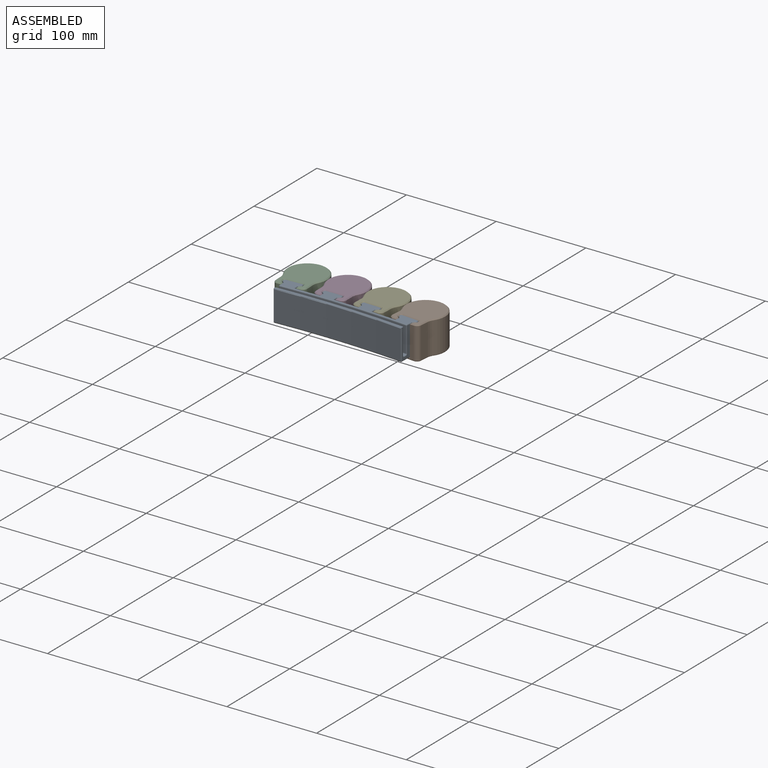
[diagram: assembled view]
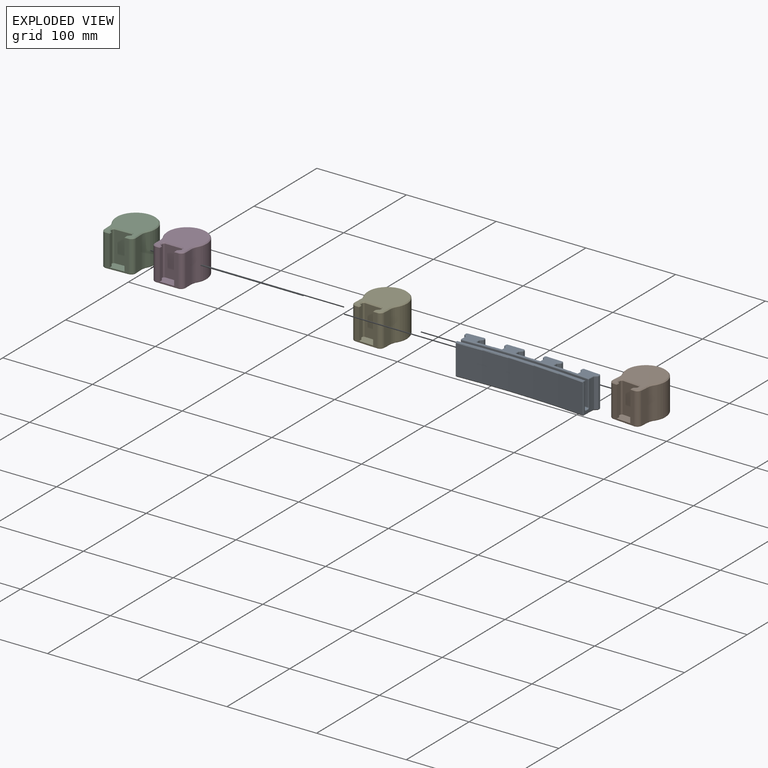
[diagram: exploded view]
GUIDED TOUR — MATED ASSEMBLY (Onshape document a378aaa92d6a73c06795d829, AutoMate assembly a378aaa92d6a73c06795d829_809e8ccdd2a63b1c819c4814_ec6c85f14693e9807fbb0a34_default)

This assembly has 5 components, labeled P0..P4 below (a component is one placed occurrence of a part; the same part can appear more than once), held together by 4 mates. A mate is a constraint between two components; its type names the relative motion it leaves free:
  FASTENED — locks the two components together rigidly (no relative motion),
  SLIDER — leaves translation along the listed axis free.
Axis/direction vectors are unit vectors and 'through' points are millimeter coordinates, both in the assembly's world frame.

MATES
  1. SLIDER "Slider 1": P2 <-> P0, axis (0.000, 0.000, -1.000) through (128.84, -8.79, -37.56) mm
  2. FASTENED "Fastened 2": P0 <-> P3, direction (0.000, 0.000, -1.000) through (172.41, -7.86, -37.56) mm
  3. FASTENED "Fastened 3": P4 <-> P0, direction (0.000, 0.000, -1.000) through (215.93, -8.78, -37.56) mm
  4. FASTENED "Fastened 1": P1 <-> P0, direction (0.000, 0.000, -1.000) through (259.42, -11.55, -37.56) mm

ASSEMBLY ORDER
  1. P4 — the base component [order verified]
  2. P0 [order verified]
  3. P3 [order verified]
  4. P2 [order verified]
  5. P1 [order verified]
Order-tag legend:
  [order verified] — this step's position reverses a verified removal order: the component was checked to insert without passing through the ones already placed.

Of the 5 components, 1 carries the full construction recipe — the FeatureScript program that regenerates the part's solid from scratch; the rest are supplied as boundary geometry only.
Each toured component is shown spotlighted twice — in the assembled view, then in the exploded view, where a leader line traces a displaced component back to its assembled socket (saturated green if recipe-attached, orange if geometry-only; every other component desaturated gray) — followed by its recipe or geometry summary and the mates that hold it.
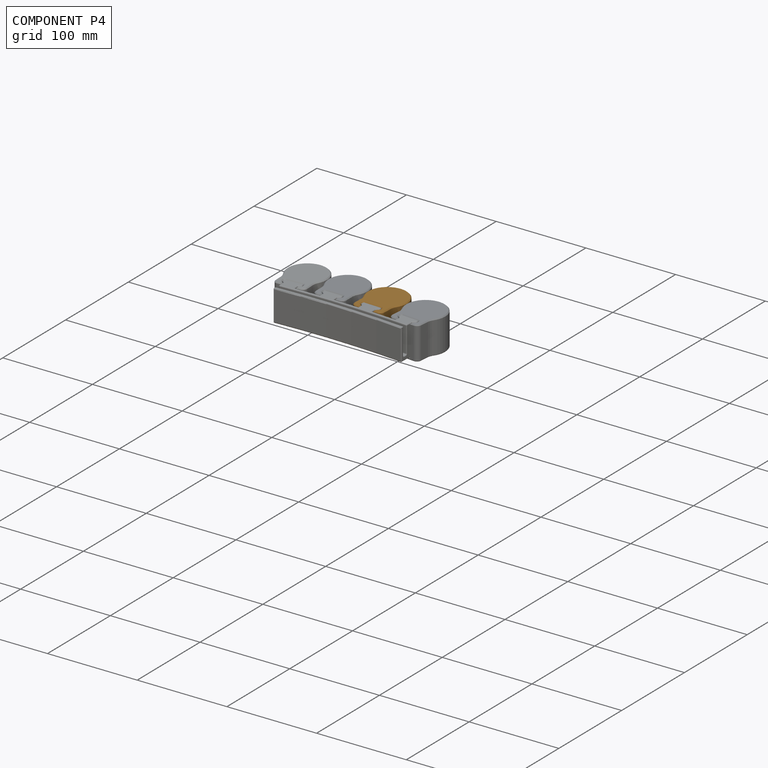
[diagram: component P4 — assembled]
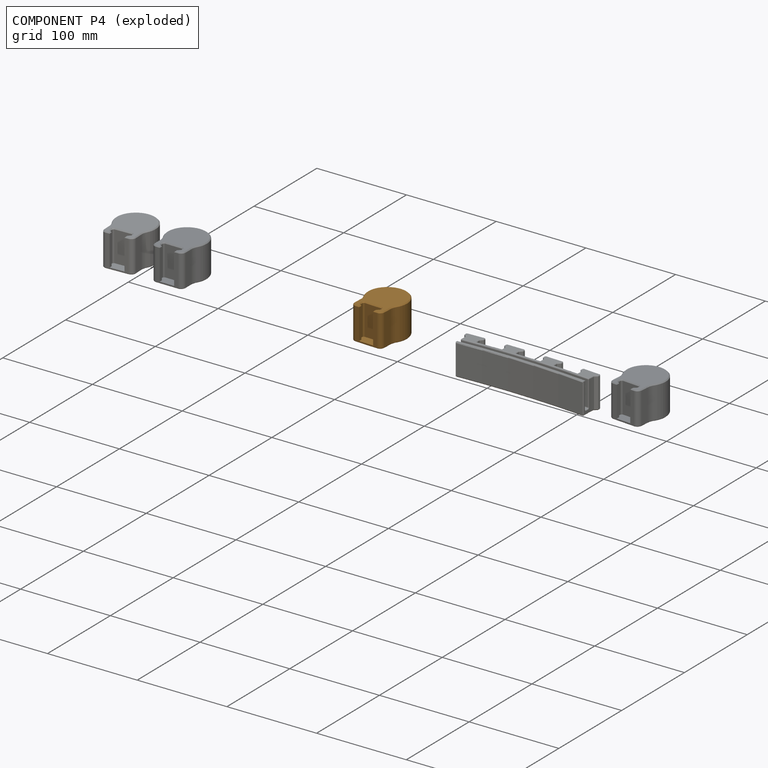
[diagram: component P4 — exploded]
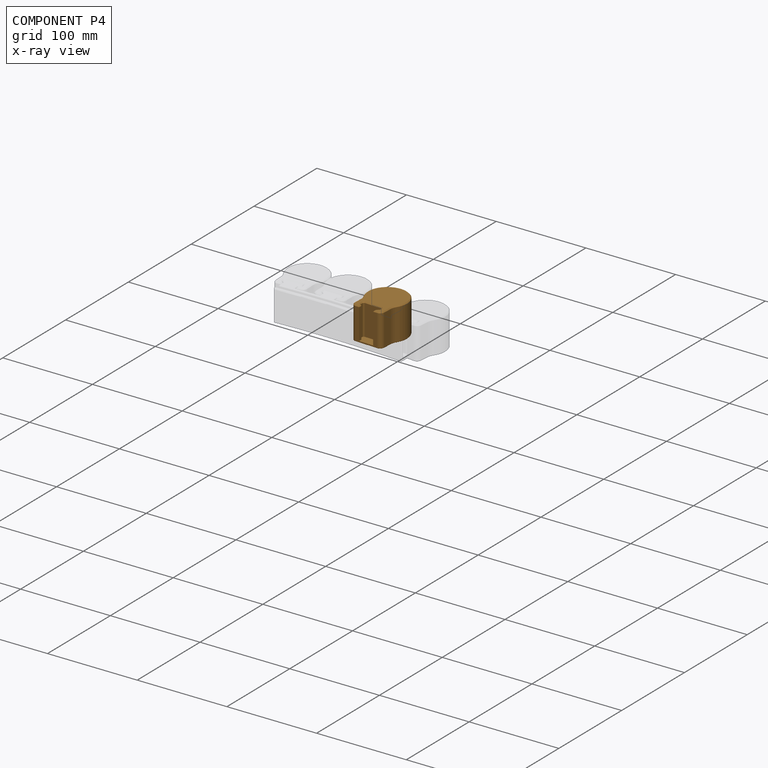
[diagram: component P4 — x-ray view]
COMPONENT P4 — geometry summary (no construction recipe available for this part):
  bounding box: 56.2 x 47.8 x 37.1 mm
  B-rep topology: 1 solid, 83 faces, 414 edges
  volume: 22186 mm^3 (22% of its bounding box)
  symmetry: mirror-symmetric across its x mid-plane
Held by: FASTENED mate "Fastened 3" to P0.
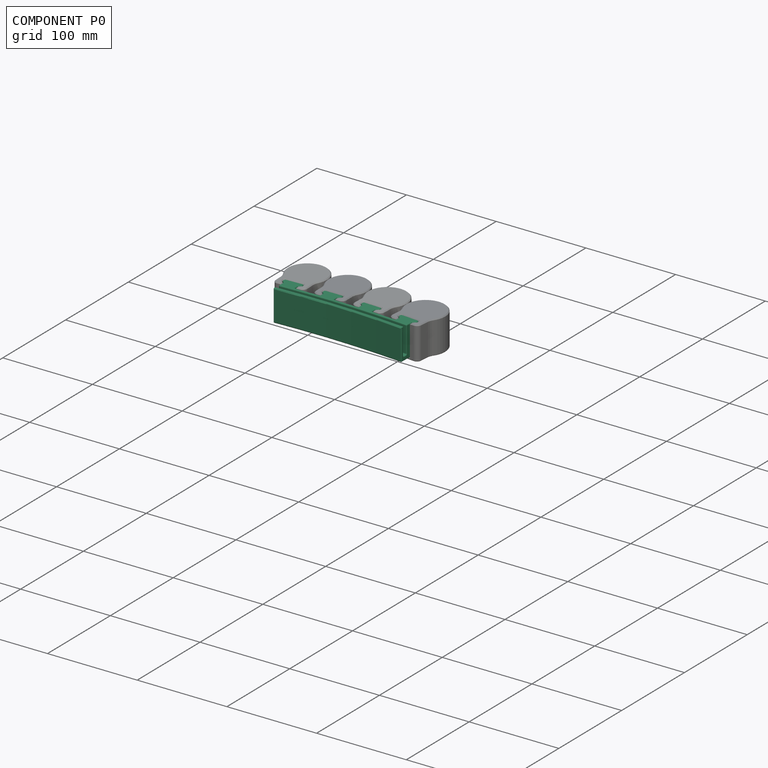
[diagram: component P0 — assembled]
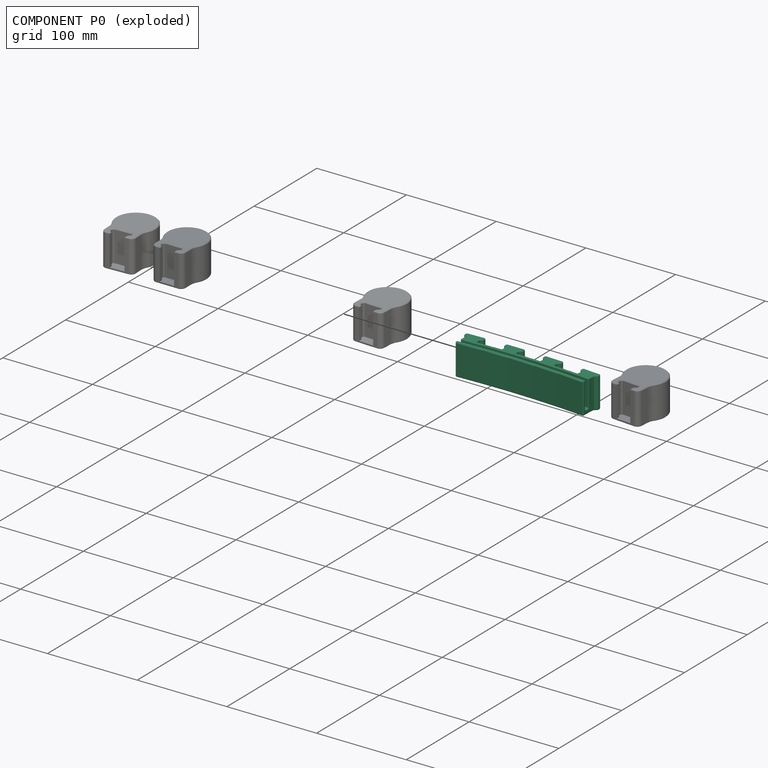
[diagram: component P0 — exploded]
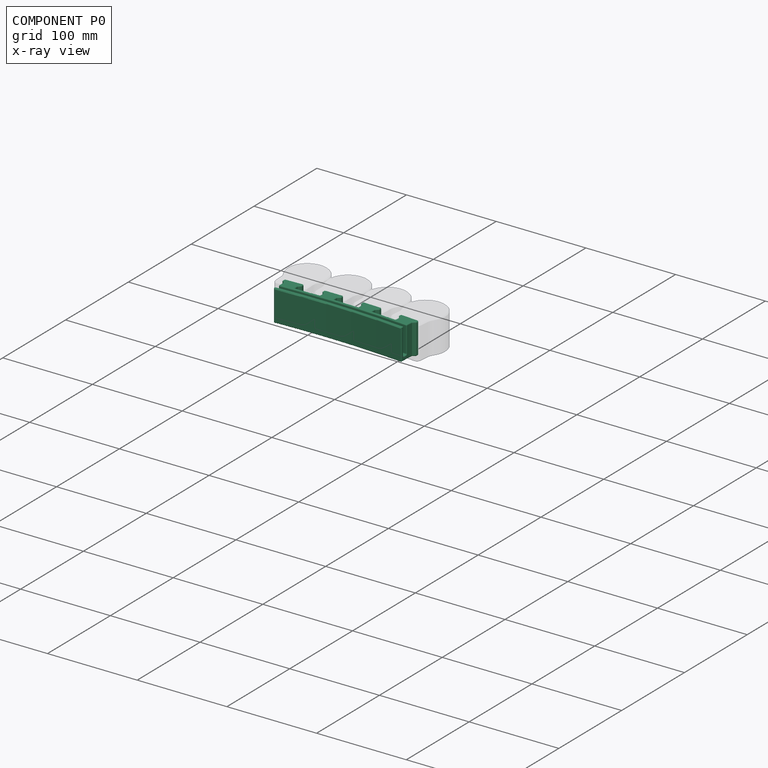
[diagram: component P0 — x-ray view]
COMPONENT P0 — recipe-attached (CADFS 00832542, mesh-verified: the recipe's output STEP matches this component's geometry to below the mesh-comparison resolution (tessellation chordal tolerance ~0.237 mm)).
Held by: SLIDER mate "Slider 1" to P2; FASTENED mate "Fastened 2" to P3; FASTENED mate "Fastened 3" to P4; FASTENED mate "Fastened 1" to P1.
Construction recipe (FeatureScript — the CAD program that rebuilds this solid; sketch coordinates are in the units given by the * unit suffixes, e.g. mm):

FeatureScript 1511;
import(path : "onshape/std/geometry.fs", version : "1511.0");
import(path : "onshape/std/common.fs", version : "1511.0");
const mm = millimeter;
const VERTEX = EntityType.VERTEX;
const EDGE = EntityType.EDGE;
const FACE = EntityType.FACE;
const BODY = EntityType.BODY;
function v(x, y){return vector(x, y);}
function OD(order){return orderDisambiguation(order);}
function OSD(set){return originalSetDisambiguation(set);}
function TD(topology){return topologyDisambiguation(topology);}
function TDD(query){return trueDependencyDisambiguation(query);}
function sQuery(a, b, c) {return sketchEntityQuery(a, b, c);}

annotation { "Feature Type Name" : "Feature", "Feature Type Description" : "" }
export const myFeature = defineFeature(function(context is Context, id is Id, definition is map)
    precondition{}
    {
        {
            var Q0;
            Q0=qCreatedBy(makeId("Top.planeOp"),FACE);
            var sketch = newSketch(context, id + "F0", { "sketchPlane" : qUnion([Q0])});
            skArc(sketch, "E0", {"start": v(72.5, 0) * mm, "mid": v(0, 2.6) * mm, "end": v(-72.5, 0) * mm});
            skPoint(sketch, "E1", {"position": v(0, 2.6) * mm});
            skArc(sketch, "E2.0", {"start": v(72.5, 3) * mm, "mid": v(0, 5.6) * mm, "end": v(-72.5, 3) * mm});
            skArc(sketch, "E3.0", {"start": v(72.5, -5.01) * mm, "mid": v(0, -2.4) * mm, "end": v(-72.5, -5.01) * mm});
            skArc(sketch, "E4.0", {"start": v(72.5, -8.02) * mm, "mid": v(0, -5.4) * mm, "end": v(-72.5, -8.02) * mm});
            skLineSegment(sketch, "E5", {"start": v(-72.5, -5.01) * mm, "end": v(-72.5, -8.02) * mm});
            skLineSegment(sketch, "E6", {"start": v(-72.5, 3) * mm, "end": v(-72.5, 0) * mm});
            skLineSegment(sketch, "E7", {"start": v(72.5, 3) * mm, "end": v(72.5, 0) * mm});
            skLineSegment(sketch, "E8", {"start": v(72.5, -5.01) * mm, "end": v(72.5, -8.02) * mm});
            skLineSegment(sketch, "E9", {"start": v(-72.5, 3) * mm, "end": v(-72.5, -8.02) * mm});
            skLineSegment(sketch, "E10", {"start": v(72.5, 3) * mm, "end": v(72.5, -8.02) * mm});
            skPoint(sketch, "E11", {"position": v(-21.6, 5.36) * mm});
            skPoint(sketch, "E12", {"position": v(21.6, 5.36) * mm});
            skSolve(sketch);
        }
        {
            var Q0;
            {var subQ0=sQuery(id+"F0.wireOp",EDGE,"E0");Q0=makeQuery(id+"F0.imprint","IMPRINT",FACE,{"disambiguationData":[TD([[makeQuery(id+"F0.imprint","IMPRINT",EDGE,{"derivedFrom":subQ0}),1.0]])]});}
            var Q1;
            {var subQ0=sQuery(id+"F0.wireOp",EDGE,"E0");Q1=makeQuery(id+"F0.imprint","IMPRINT",FACE,{"disambiguationData":[TD([[makeQuery(id+"F0.imprint","IMPRINT",EDGE,{"derivedFrom":subQ0}),-1.0]])]});}
            var Q2;
            {var subQ0=sQuery(id+"F0.wireOp",EDGE,"E3.0");Q2=makeQuery(id+"F0.imprint","IMPRINT",FACE,{"disambiguationData":[TD([[makeQuery(id+"F0.imprint","IMPRINT",EDGE,{"derivedFrom":subQ0}),1.0]])]});}
            extrude(context, id + "F1", {"entities" : qUnion([Q0, Q1, Q2]), "depth" : 5 * mm, "offsetDistance" : 25 * mm});
        }
        {
            var Q0;
            {var subQ0=sQuery(id+"F0.wireOp",EDGE,"E0");Q0=makeQuery(id+"F0.imprint","IMPRINT",FACE,{"disambiguationData":[TD([[makeQuery(id+"F0.imprint","IMPRINT",EDGE,{"derivedFrom":subQ0}),-1.0]])]});}
            extrude(context, id + "F2", {"entities" : qUnion([Q0]), "operationType" : NewBodyOperationType.ADD, "depth" : 35 * mm, "offsetDistance" : 25 * mm});
        }
        {
            var Q0;
            {var subQ0=sQuery(id+"F0.wireOp",EDGE,"E3.0");Q0=makeQuery(id+"F0.imprint","IMPRINT",FACE,{"disambiguationData":[TD([[makeQuery(id+"F0.imprint","IMPRINT",EDGE,{"derivedFrom":subQ0}),1.0]])]});}
            var Q1;
            Q1=makeQuery(id+"F2.opExtrude","CAP_FACE",FACE,{"disambiguationData":[OSD([sQuery(id+"F0.wireOp",EDGE,"E0"),sQuery(id+"F0.wireOp",EDGE,"E2.0"),sQuery(id+"F0.wireOp",EDGE,"E9"),sQuery(id+"F0.wireOp",EDGE,"E10")])],"isStart":false});
            extrude(context, id + "F3", {"entities" : qUnion([Q0]), "operationType" : NewBodyOperationType.ADD, "endBound" : BoundingType.UP_TO_SURFACE, "depth" : 35 * mm, "endBoundEntityFace" : qUnion([Q1]), "offsetDistance" : 25 * mm});
        }
        {
            var Q0;
            {var subQ0=sQuery(id+"F0.wireOp",EDGE,"E9");Q0=makeQuery(id+"F3.boolean.opBoolean","MERGE",FACE,{"derivedFrom":[makeQuery(id+"F2.boolean.opBoolean","MERGE",FACE,{"derivedFrom":[makeQuery(id+"F1.opExtrude","SWEPT_FACE",FACE,{"disambiguationData":[OSD([subQ0])]}),makeQuery(id+"F2.opExtrude","SWEPT_FACE",FACE,{"disambiguationData":[OSD([subQ0])]})]}),makeQuery(id+"F3.opExtrude","SWEPT_FACE",FACE,{"disambiguationData":[OSD([subQ0])]})]});}
            var sketch = newSketch(context, id + "F4", { "sketchPlane" : qUnion([Q0])});
            skArc(sketch, "E13", {"start": v(5.01, 35) * mm, "mid": v(3.72, 32.62) * mm, "end": v(5.01, 30.24) * mm});
            skSolve(sketch);
        }
        {
            var Q0;
            {var subQ0=sQuery(id+"F4.wireOp",EDGE,"E13");Q0=makeQuery(id+"F4.imprint","IMPRINT",FACE,{"disambiguationData":[TD([[makeQuery(id+"F4.imprint","IMPRINT",EDGE,{"derivedFrom":subQ0}),1.0]])]});}
            var Q1;
            Q1=makeQuery(id+"F3.opExtrude","CAP_EDGE",EDGE,{"disambiguationData":[OSD([sQuery(id+"F0.wireOp",EDGE,"E3.0")])],"isStart":false});
            sweep(context, id + "F5", {"operationType" : NewBodyOperationType.ADD, "profiles" : qUnion([Q0]), "path" : qUnion([Q1])});
        }
        {
            var Q0;
            Q0=qCreatedBy(makeId("Top.planeOp"),FACE);
            var sketch = newSketch(context, id + "F6", { "sketchPlane" : qUnion([Q0])});
            skLineSegment(sketch, "E14", {"start": v(57.11, 3.99) * mm, "end": v(72.5, 3) * mm});
            skLineSegment(sketch, "E15", {"start": v(57.11, 3.99) * mm, "end": v(57.43, 8.98) * mm});
            skLineSegment(sketch, "E16", {"start": v(72.5, 3) * mm, "end": v(72.82, 8) * mm});
            skLineSegment(sketch, "E17", {"start": v(72.82, 8) * mm, "end": v(75.82, 10.64) * mm});
            skLineSegment(sketch, "E18", {"start": v(75.02, 14.36) * mm, "end": v(56.06, 15.57) * mm});
            skLineSegment(sketch, "E19", {"start": v(54.79, 11.98) * mm, "end": v(57.43, 8.98) * mm});
            skLineSegment(sketch, "E20", {"start": v(54.79, 11.98) * mm, "end": v(54.95, 14.6) * mm});
            skLineSegment(sketch, "E21", {"start": v(54.95, 14.6) * mm, "end": v(56.06, 15.57) * mm});
            skLineSegment(sketch, "E22", {"start": v(75.02, 14.36) * mm, "end": v(76, 13.25) * mm});
            skLineSegment(sketch, "E23", {"start": v(76, 13.25) * mm, "end": v(75.82, 10.64) * mm});
            skPoint(sketch, "E24", {"position": v(65.54, 14.96) * mm});
            skPoint(sketch, "E25", {"position": v(64.8, 3.5) * mm});
            skLineSegment(sketch, "E26", {"start": v(66.13, 24.3) * mm, "end": v(62.81, -27.83) * mm, "construction": true});
            skLineSegment(sketch, "E27", {"start": v(53.84, 9.2) * mm, "end": v(75.99, 7.8) * mm, "construction": true});
            skLineSegment(sketch, "E28", {"start": v(54.06, 12.03) * mm, "end": v(76.55, 10.6) * mm, "construction": true});
            skLineSegment(sketch, "E29", {"start": v(57.43, 14.44) * mm, "end": v(80.73, 12.95) * mm, "construction": true});
            skPoint(sketch, "E30", {"position": v(65.3, 11.31) * mm});
            skSolve(sketch);
        }
        {
            var Q0;
            Q0=qCreatedBy(makeId("Top.planeOp"),FACE);
            var sketch = newSketch(context, id + "F7", { "sketchPlane" : qUnion([Q0])});
            skLineSegment(sketch, "E31", {"start": v(-72.5, 3) * mm, "end": v(-57.11, 3.99) * mm});
            skLineSegment(sketch, "E32", {"start": v(-72.5, 3) * mm, "end": v(-72.82, 8) * mm});
            skLineSegment(sketch, "E33", {"start": v(-57.11, 3.99) * mm, "end": v(-57.43, 8.98) * mm});
            skLineSegment(sketch, "E34", {"start": v(-57.43, 8.98) * mm, "end": v(-54.79, 11.98) * mm});
            skLineSegment(sketch, "E35", {"start": v(-56.06, 15.57) * mm, "end": v(-75.02, 14.36) * mm});
            skLineSegment(sketch, "E36", {"start": v(-75.82, 10.64) * mm, "end": v(-72.82, 8) * mm});
            skLineSegment(sketch, "E37", {"start": v(-75.82, 10.64) * mm, "end": v(-76, 13.25) * mm});
            skLineSegment(sketch, "E38", {"start": v(-76, 13.25) * mm, "end": v(-75.02, 14.36) * mm});
            skLineSegment(sketch, "E39", {"start": v(-56.06, 15.57) * mm, "end": v(-54.95, 14.6) * mm});
            skLineSegment(sketch, "E40", {"start": v(-54.95, 14.6) * mm, "end": v(-54.79, 11.98) * mm});
            skPoint(sketch, "E41", {"position": v(-65.54, 14.96) * mm});
            skPoint(sketch, "E42", {"position": v(-64.8, 3.5) * mm});
            skLineSegment(sketch, "E43", {"start": v(-66.36, 27.87) * mm, "end": v(-63.01, -24.64) * mm, "construction": true});
            skLineSegment(sketch, "E44", {"start": v(-77.11, 7.72) * mm, "end": v(-54.85, 9.14) * mm, "construction": true});
            skLineSegment(sketch, "E45", {"start": v(-77.54, 10.53) * mm, "end": v(-55.06, 11.97) * mm, "construction": true});
            skLineSegment(sketch, "E46", {"start": v(-74.75, 13.33) * mm, "end": v(-51.32, 14.83) * mm, "construction": true});
            skPoint(sketch, "E47", {"position": v(-65.3, 11.31) * mm});
            skSolve(sketch);
        }
        {
            var Q0;
            Q0=qCreatedBy(makeId("Top.planeOp"),FACE);
            var sketch = newSketch(context, id + "F8", { "sketchPlane" : qUnion([Q0])});
            skLineSegment(sketch, "E48", {"start": v(-29.3, 5.17) * mm, "end": v(-13.9, 5.5) * mm});
            skLineSegment(sketch, "E49", {"start": v(-29.3, 5.17) * mm, "end": v(-29.41, 10.17) * mm});
            skLineSegment(sketch, "E50", {"start": v(-13.9, 5.5) * mm, "end": v(-14, 10.5) * mm});
            skLineSegment(sketch, "E51", {"start": v(-14, 10.5) * mm, "end": v(-11.23, 13.39) * mm});
            skLineSegment(sketch, "E52", {"start": v(-12.35, 17.02) * mm, "end": v(-31.34, 16.62) * mm});
            skLineSegment(sketch, "E53", {"start": v(-32.3, 12.94) * mm, "end": v(-29.41, 10.17) * mm});
            skLineSegment(sketch, "E54", {"start": v(-32.3, 12.94) * mm, "end": v(-32.36, 15.55) * mm});
            skLineSegment(sketch, "E55", {"start": v(-32.36, 15.55) * mm, "end": v(-31.34, 16.62) * mm});
            skLineSegment(sketch, "E56", {"start": v(-12.35, 17.02) * mm, "end": v(-11.28, 16) * mm});
            skLineSegment(sketch, "E57", {"start": v(-11.28, 16) * mm, "end": v(-11.23, 13.39) * mm});
            skPoint(sketch, "E58", {"position": v(-21.84, 16.82) * mm});
            skPoint(sketch, "E59", {"position": v(-21.6, 5.33) * mm});
            skLineSegment(sketch, "E60", {"start": v(-22.4, 42.7) * mm, "end": v(-21.1, -18.04) * mm, "construction": true});
            skLineSegment(sketch, "E61", {"start": v(-33.71, 10.08) * mm, "end": v(-11.41, 10.55) * mm, "construction": true});
            skLineSegment(sketch, "E62", {"start": v(-34.02, 12.9) * mm, "end": v(-11.5, 13.38) * mm, "construction": true});
            skLineSegment(sketch, "E63", {"start": v(-31.12, 15.58) * mm, "end": v(-7.65, 16.08) * mm, "construction": true});
            skPoint(sketch, "E64", {"position": v(-21.77, 13.16) * mm});
            skSolve(sketch);
        }
        {
            var Q0;
            Q0=qCreatedBy(makeId("Top.planeOp"),FACE);
            var sketch = newSketch(context, id + "F9", { "sketchPlane" : qUnion([Q0])});
            skLineSegment(sketch, "E65", {"start": v(13.9, 5.5) * mm, "end": v(29.3, 5.17) * mm});
            skLineSegment(sketch, "E66", {"start": v(13.9, 5.5) * mm, "end": v(14, 10.5) * mm});
            skLineSegment(sketch, "E67", {"start": v(29.3, 5.17) * mm, "end": v(29.41, 10.17) * mm});
            skLineSegment(sketch, "E68", {"start": v(29.41, 10.17) * mm, "end": v(32.3, 12.94) * mm});
            skLineSegment(sketch, "E69", {"start": v(31.34, 16.62) * mm, "end": v(12.35, 17.02) * mm});
            skLineSegment(sketch, "E70", {"start": v(11.23, 13.39) * mm, "end": v(14, 10.5) * mm});
            skLineSegment(sketch, "E71", {"start": v(11.23, 13.39) * mm, "end": v(11.28, 16) * mm});
            skLineSegment(sketch, "E72", {"start": v(11.28, 16) * mm, "end": v(12.35, 17.02) * mm});
            skLineSegment(sketch, "E73", {"start": v(31.34, 16.62) * mm, "end": v(32.36, 15.55) * mm});
            skLineSegment(sketch, "E74", {"start": v(32.36, 15.55) * mm, "end": v(32.3, 12.94) * mm});
            skPoint(sketch, "E75", {"position": v(21.84, 16.82) * mm});
            skPoint(sketch, "E76", {"position": v(21.6, 5.33) * mm});
            skLineSegment(sketch, "E77", {"start": v(22.43, 44.36) * mm, "end": v(20.9, -27.94) * mm, "construction": true});
            skLineSegment(sketch, "E78", {"start": v(9.7, 10.59) * mm, "end": v(32, 10.11) * mm, "construction": true});
            skLineSegment(sketch, "E79", {"start": v(9.51, 13.42) * mm, "end": v(32.03, 12.94) * mm, "construction": true});
            skLineSegment(sketch, "E80", {"start": v(12.52, 15.98) * mm, "end": v(36, 15.48) * mm, "construction": true});
            skPoint(sketch, "E81", {"position": v(21.77, 13.16) * mm});
            skSolve(sketch);
        }
        {
            var Q0;
            Q0=makeQuery(id+"F7.imprint","IMPRINT",FACE,{"disambiguationData":[TD([[makeQuery(id+"F7.imprint","IMPRINT",EDGE,{"derivedFrom":sQuery(id+"F7.wireOp",EDGE,"E31")}),1.0]])]});
            var Q1;
            Q1=makeQuery(id+"F6.imprint","IMPRINT",FACE,{"disambiguationData":[TD([[makeQuery(id+"F6.imprint","IMPRINT",EDGE,{"derivedFrom":sQuery(id+"F6.wireOp",EDGE,"E14")}),1.0]])]});
            var Q2;
            Q2=makeQuery(id+"F9.imprint","IMPRINT",FACE,{"disambiguationData":[TD([[makeQuery(id+"F9.imprint","IMPRINT",EDGE,{"derivedFrom":sQuery(id+"F9.wireOp",EDGE,"E65")}),1.0]])]});
            var Q3;
            Q3=makeQuery(id+"F8.imprint","IMPRINT",FACE,{"disambiguationData":[TD([[makeQuery(id+"F8.imprint","IMPRINT",EDGE,{"derivedFrom":sQuery(id+"F8.wireOp",EDGE,"E48")}),1.0]])]});
            var Q4;
            Q4=makeQuery(id+"F2.opExtrude","CAP_FACE",FACE,{"disambiguationData":[OSD([sQuery(id+"F0.wireOp",EDGE,"E0"),sQuery(id+"F0.wireOp",EDGE,"E2.0"),sQuery(id+"F0.wireOp",EDGE,"E9"),sQuery(id+"F0.wireOp",EDGE,"E10")])],"isStart":false});
            extrude(context, id + "F10", {"entities" : qUnion([Q0, Q1, Q2, Q3]), "operationType" : NewBodyOperationType.ADD, "endBound" : BoundingType.UP_TO_SURFACE, "depth" : 25 * mm, "endBoundEntityFace" : qUnion([Q4]), "offsetDistance" : 25 * mm});
        }
        {
            var Q0;
            Q0=makeQuery(id+"F10.boolean.opBoolean","MERGE",FACE,{"derivedFrom":[makeQuery(id+"F1.opExtrude","CAP_FACE",FACE,{"disambiguationData":[OSD([sQuery(id+"F0.wireOp",EDGE,"E2.0"),sQuery(id+"F0.wireOp",EDGE,"E4.0"),sQuery(id+"F0.wireOp",EDGE,"E9"),sQuery(id+"F0.wireOp",EDGE,"E10")])],"isStart":true}),makeQuery(id+"F10.opExtrude","CAP_FACE",FACE,{"disambiguationData":[OSD([sQuery(id+"F6.wireOp",EDGE,"E14"),sQuery(id+"F6.wireOp",EDGE,"E15"),sQuery(id+"F6.wireOp",EDGE,"E16"),sQuery(id+"F6.wireOp",EDGE,"E17"),sQuery(id+"F6.wireOp",EDGE,"E18"),sQuery(id+"F6.wireOp",EDGE,"E19"),sQuery(id+"F6.wireOp",EDGE,"E20"),sQuery(id+"F6.wireOp",EDGE,"E21"),sQuery(id+"F6.wireOp",EDGE,"E22"),sQuery(id+"F6.wireOp",EDGE,"E23")])],"isStart":true}),makeQuery(id+"F10.opExtrude","CAP_FACE",FACE,{"disambiguationData":[OSD([sQuery(id+"F7.wireOp",EDGE,"E31"),sQuery(id+"F7.wireOp",EDGE,"E32"),sQuery(id+"F7.wireOp",EDGE,"E33"),sQuery(id+"F7.wireOp",EDGE,"E34"),sQuery(id+"F7.wireOp",EDGE,"E35"),sQuery(id+"F7.wireOp",EDGE,"E36"),sQuery(id+"F7.wireOp",EDGE,"E37"),sQuery(id+"F7.wireOp",EDGE,"E38"),sQuery(id+"F7.wireOp",EDGE,"E39"),sQuery(id+"F7.wireOp",EDGE,"E40")])],"isStart":true}),makeQuery(id+"F10.opExtrude","CAP_FACE",FACE,{"disambiguationData":[OSD([sQuery(id+"F8.wireOp",EDGE,"E48"),sQuery(id+"F8.wireOp",EDGE,"E49"),sQuery(id+"F8.wireOp",EDGE,"E50"),sQuery(id+"F8.wireOp",EDGE,"E51"),sQuery(id+"F8.wireOp",EDGE,"E52"),sQuery(id+"F8.wireOp",EDGE,"E53"),sQuery(id+"F8.wireOp",EDGE,"E54"),sQuery(id+"F8.wireOp",EDGE,"E55"),sQuery(id+"F8.wireOp",EDGE,"E56"),sQuery(id+"F8.wireOp",EDGE,"E57")])],"isStart":true}),makeQuery(id+"F10.opExtrude","CAP_FACE",FACE,{"disambiguationData":[OSD([sQuery(id+"F9.wireOp",EDGE,"E65"),sQuery(id+"F9.wireOp",EDGE,"E66"),sQuery(id+"F9.wireOp",EDGE,"E67"),sQuery(id+"F9.wireOp",EDGE,"E68"),sQuery(id+"F9.wireOp",EDGE,"E69"),sQuery(id+"F9.wireOp",EDGE,"E70"),sQuery(id+"F9.wireOp",EDGE,"E71"),sQuery(id+"F9.wireOp",EDGE,"E72"),sQuery(id+"F9.wireOp",EDGE,"E73"),sQuery(id+"F9.wireOp",EDGE,"E74")])],"isStart":true})]});
            chamfer(context, id + "F11", {"entities" : qUnion([Q0]), "width" : 1 * mm, "tangentPropagation" : true});
        }
        {
            var Q0;
            Q0=makeQuery(id+"F10.boolean.opBoolean","MERGE",FACE,{"derivedFrom":[makeQuery(id+"F2.opExtrude","CAP_FACE",FACE,{"disambiguationData":[OSD([sQuery(id+"F0.wireOp",EDGE,"E0"),sQuery(id+"F0.wireOp",EDGE,"E2.0"),sQuery(id+"F0.wireOp",EDGE,"E9"),sQuery(id+"F0.wireOp",EDGE,"E10")])],"isStart":false}),makeQuery(id+"F10.opExtrude","CAP_FACE",FACE,{"disambiguationData":[OSD([sQuery(id+"F6.wireOp",EDGE,"E14"),sQuery(id+"F6.wireOp",EDGE,"E15"),sQuery(id+"F6.wireOp",EDGE,"E16"),sQuery(id+"F6.wireOp",EDGE,"E17"),sQuery(id+"F6.wireOp",EDGE,"E18"),sQuery(id+"F6.wireOp",EDGE,"E19"),sQuery(id+"F6.wireOp",EDGE,"E20"),sQuery(id+"F6.wireOp",EDGE,"E21"),sQuery(id+"F6.wireOp",EDGE,"E22"),sQuery(id+"F6.wireOp",EDGE,"E23")])],"isStart":false}),makeQuery(id+"F10.opExtrude","CAP_FACE",FACE,{"disambiguationData":[OSD([sQuery(id+"F7.wireOp",EDGE,"E31"),sQuery(id+"F7.wireOp",EDGE,"E32"),sQuery(id+"F7.wireOp",EDGE,"E33"),sQuery(id+"F7.wireOp",EDGE,"E34"),sQuery(id+"F7.wireOp",EDGE,"E35"),sQuery(id+"F7.wireOp",EDGE,"E36"),sQuery(id+"F7.wireOp",EDGE,"E37"),sQuery(id+"F7.wireOp",EDGE,"E38"),sQuery(id+"F7.wireOp",EDGE,"E39"),sQuery(id+"F7.wireOp",EDGE,"E40")])],"isStart":false}),makeQuery(id+"F10.opExtrude","CAP_FACE",FACE,{"disambiguationData":[OSD([sQuery(id+"F8.wireOp",EDGE,"E48"),sQuery(id+"F8.wireOp",EDGE,"E49"),sQuery(id+"F8.wireOp",EDGE,"E50"),sQuery(id+"F8.wireOp",EDGE,"E51"),sQuery(id+"F8.wireOp",EDGE,"E52"),sQuery(id+"F8.wireOp",EDGE,"E53"),sQuery(id+"F8.wireOp",EDGE,"E54"),sQuery(id+"F8.wireOp",EDGE,"E55"),sQuery(id+"F8.wireOp",EDGE,"E56"),sQuery(id+"F8.wireOp",EDGE,"E57")])],"isStart":false}),makeQuery(id+"F10.opExtrude","CAP_FACE",FACE,{"disambiguationData":[OSD([sQuery(id+"F9.wireOp",EDGE,"E65"),sQuery(id+"F9.wireOp",EDGE,"E66"),sQuery(id+"F9.wireOp",EDGE,"E67"),sQuery(id+"F9.wireOp",EDGE,"E68"),sQuery(id+"F9.wireOp",EDGE,"E69"),sQuery(id+"F9.wireOp",EDGE,"E70"),sQuery(id+"F9.wireOp",EDGE,"E71"),sQuery(id+"F9.wireOp",EDGE,"E72"),sQuery(id+"F9.wireOp",EDGE,"E73"),sQuery(id+"F9.wireOp",EDGE,"E74")])],"isStart":false})]});
            var Q1;
            Q1=makeQuery(id+"F3.opExtrude","CAP_EDGE",EDGE,{"disambiguationData":[OSD([sQuery(id+"F0.wireOp",EDGE,"E4.0")])],"isStart":false});
            var Q2;
            {var subQ0=sQuery(id+"F0.wireOp",EDGE,"E9");var subQ1=sQuery(id+"F0.wireOp",EDGE,"E4.0");Q2=makeQuery(id+"F3.boolean.opBoolean","MERGE",EDGE,{"derivedFrom":[makeQuery(id+"F1.opExtrude","SWEPT_EDGE",EDGE,{"disambiguationData":[OSD([subQ1,subQ0])]}),makeQuery(id+"F3.opExtrude","SWEPT_EDGE",EDGE,{"disambiguationData":[OSD([subQ1,subQ0])]})]});}
            var Q3;
            {var subQ0=sQuery(id+"F0.wireOp",EDGE,"E10");var subQ1=sQuery(id+"F0.wireOp",EDGE,"E4.0");Q3=makeQuery(id+"F3.boolean.opBoolean","MERGE",EDGE,{"derivedFrom":[makeQuery(id+"F1.opExtrude","SWEPT_EDGE",EDGE,{"disambiguationData":[OSD([subQ1,subQ0])]}),makeQuery(id+"F3.opExtrude","SWEPT_EDGE",EDGE,{"disambiguationData":[OSD([subQ1,subQ0])]})]});}
            var Q4;
            Q4=makeQuery(id+"F2.opExtrude","SWEPT_EDGE",EDGE,{"disambiguationData":[OSD([sQuery(id+"F0.wireOp",EDGE,"E0"),sQuery(id+"F0.wireOp",EDGE,"E9")])]});
            var Q5;
            Q5=makeQuery(id+"F1.opExtrude","CAP_EDGE",EDGE,{"disambiguationData":[OSD([sQuery(id+"F0.wireOp",EDGE,"E9")])],"isStart":false});
            var Q6;
            Q6=makeQuery(id+"F3.opExtrude","SWEPT_EDGE",EDGE,{"disambiguationData":[OSD([sQuery(id+"F0.wireOp",EDGE,"E3.0"),sQuery(id+"F0.wireOp",EDGE,"E9")])]});
            var Q7;
            Q7=makeQuery(id+"F2.opExtrude","SWEPT_EDGE",EDGE,{"disambiguationData":[OSD([sQuery(id+"F0.wireOp",EDGE,"E0"),sQuery(id+"F0.wireOp",EDGE,"E10")])]});
            var Q8;
            Q8=makeQuery(id+"F1.opExtrude","CAP_EDGE",EDGE,{"disambiguationData":[OSD([sQuery(id+"F0.wireOp",EDGE,"E10")])],"isStart":false});
            var Q9;
            Q9=makeQuery(id+"F5.boolean.opBoolean","SPLIT",EDGE,{"derivedFrom":makeQuery(id+"F3.opExtrude","SWEPT_EDGE",EDGE,{"disambiguationData":[OSD([sQuery(id+"F0.wireOp",EDGE,"E3.0"),sQuery(id+"F0.wireOp",EDGE,"E10")])]})});
            var Q10;
            Q10=makeQuery(id+"F3.boolean.opBoolean","INTERSECT",EDGE,{"derivedFrom":[makeQuery(id+"F1.opExtrude","CAP_FACE",FACE,{"disambiguationData":[OSD([sQuery(id+"F0.wireOp",EDGE,"E2.0"),sQuery(id+"F0.wireOp",EDGE,"E4.0"),sQuery(id+"F0.wireOp",EDGE,"E9"),sQuery(id+"F0.wireOp",EDGE,"E10")])],"isStart":false}),makeQuery(id+"F3.opExtrude","SWEPT_FACE",FACE,{"disambiguationData":[OSD([sQuery(id+"F0.wireOp",EDGE,"E3.0")])]})]});
            var Q11;
            Q11=makeQuery(id+"F2.boolean.opBoolean","INTERSECT",EDGE,{"derivedFrom":[makeQuery(id+"F1.opExtrude","CAP_FACE",FACE,{"disambiguationData":[OSD([sQuery(id+"F0.wireOp",EDGE,"E2.0"),sQuery(id+"F0.wireOp",EDGE,"E4.0"),sQuery(id+"F0.wireOp",EDGE,"E9"),sQuery(id+"F0.wireOp",EDGE,"E10")])],"isStart":false}),makeQuery(id+"F2.opExtrude","SWEPT_FACE",FACE,{"disambiguationData":[OSD([sQuery(id+"F0.wireOp",EDGE,"E0")])]})]});
            fillet(context, id + "F12", {"entities" : qUnion([Q0, Q1, Q2, Q3, Q4, Q5, Q6, Q7, Q8, Q9, Q10, Q11]), "radius" : 1 * mm, "tangentPropagation" : true, "allowEdgeOverflow" : false});
        }
        {
            var Q0;
            Q0=qCreatedBy(makeId("Top.planeOp"),FACE);
            var sketch = newSketch(context, id + "F13", { "sketchPlane" : qUnion([Q0])});
            skPoint(sketch, "E82.0", {"position": v(-65.3, 11.31) * mm});
            skPoint(sketch, "E83.0", {"position": v(-21.77, 13.16) * mm});
            skPoint(sketch, "E84.0", {"position": v(65.3, 11.31) * mm});
            skPoint(sketch, "E84.1", {"position": v(21.77, 13.16) * mm});
            skSolve(sketch);
        }
    });
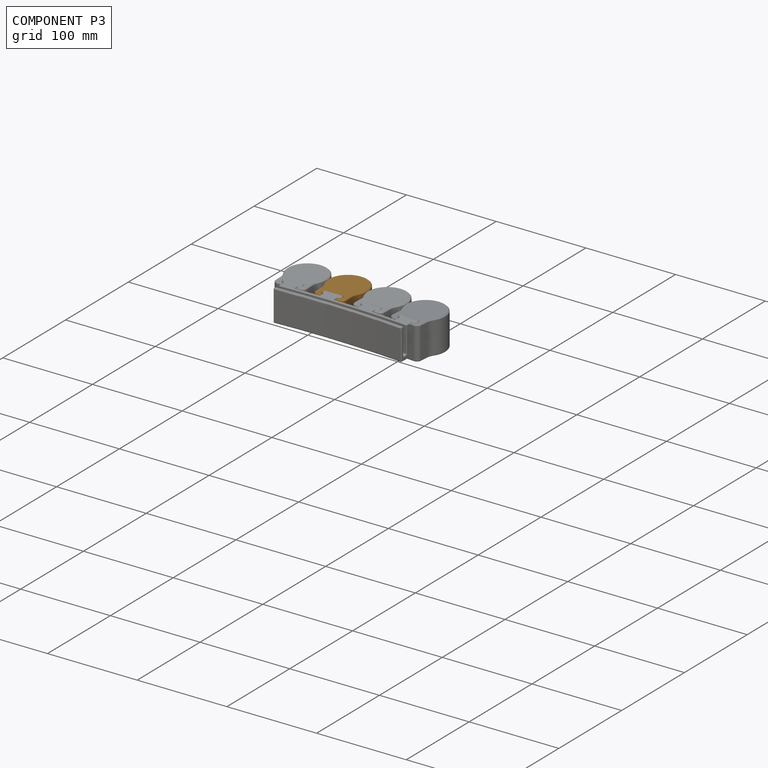
[diagram: component P3 — assembled]
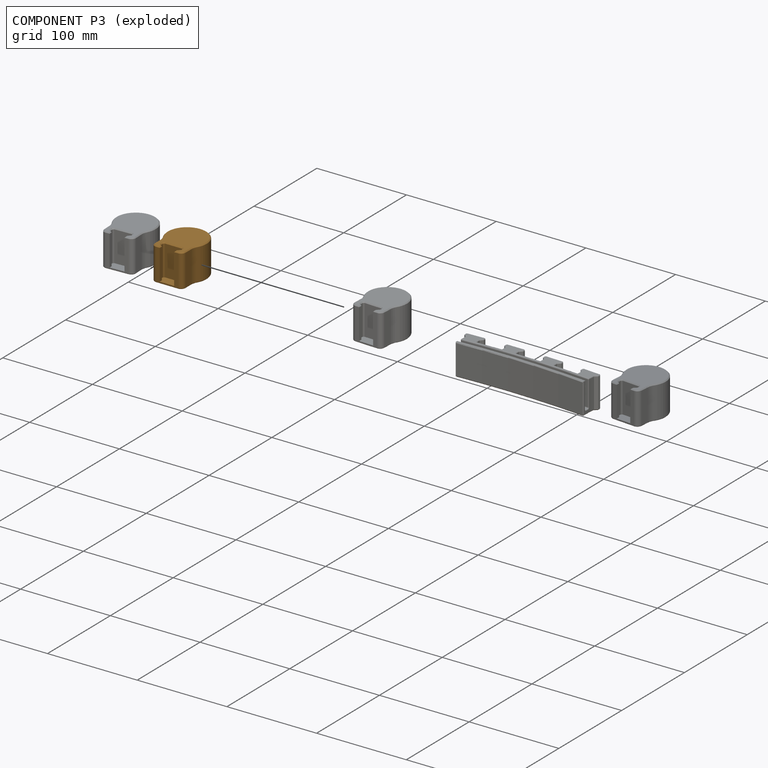
[diagram: component P3 — exploded]
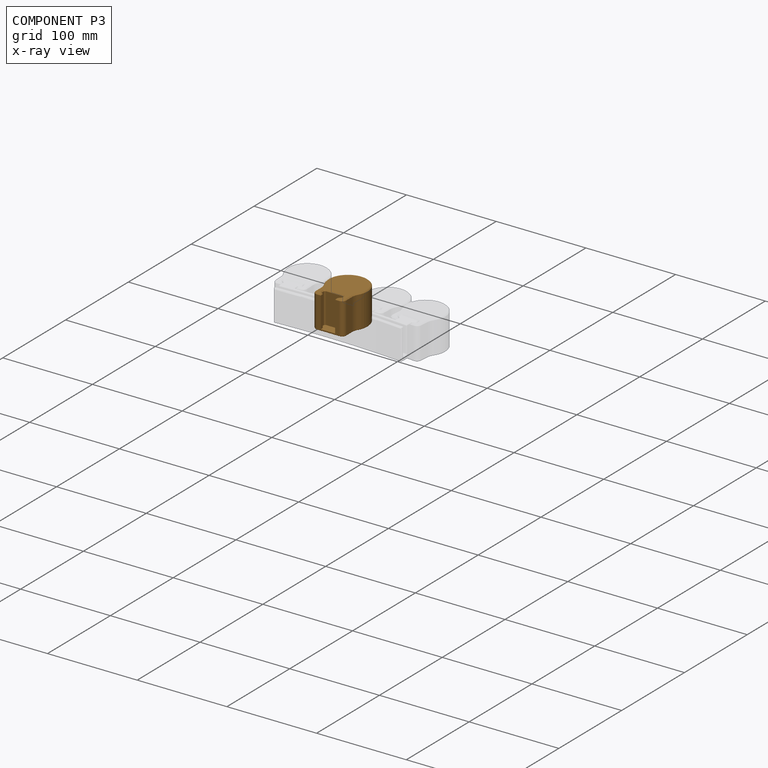
[diagram: component P3 — x-ray view]
COMPONENT P3 — geometry summary (no construction recipe available for this part):
  bounding box: 56.2 x 47.8 x 37.1 mm
  B-rep topology: 1 solid, 83 faces, 414 edges
  volume: 22186 mm^3 (22% of its bounding box)
  symmetry: mirror-symmetric across its x mid-plane
Held by: FASTENED mate "Fastened 2" to P0.
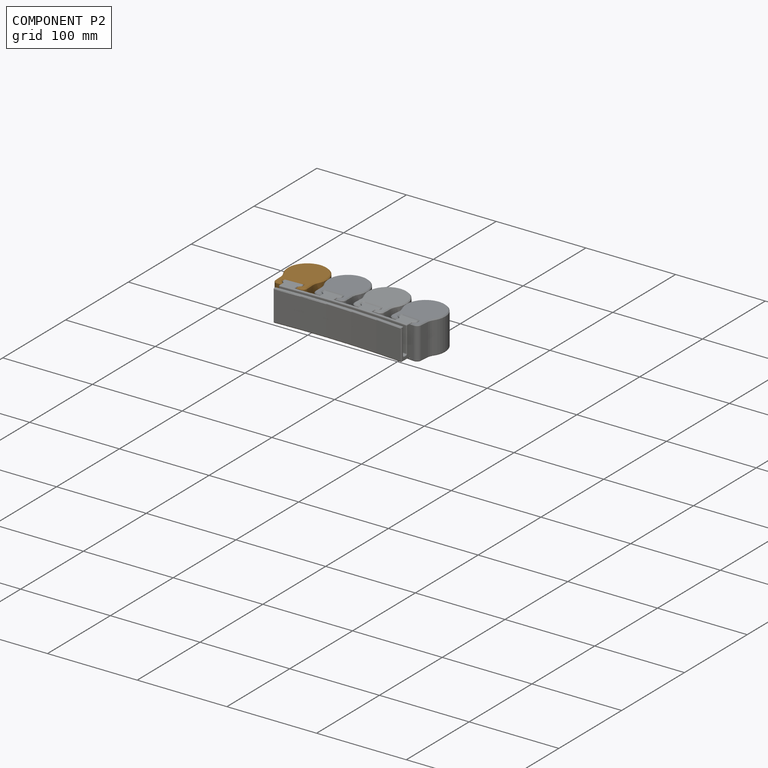
[diagram: component P2 — assembled]
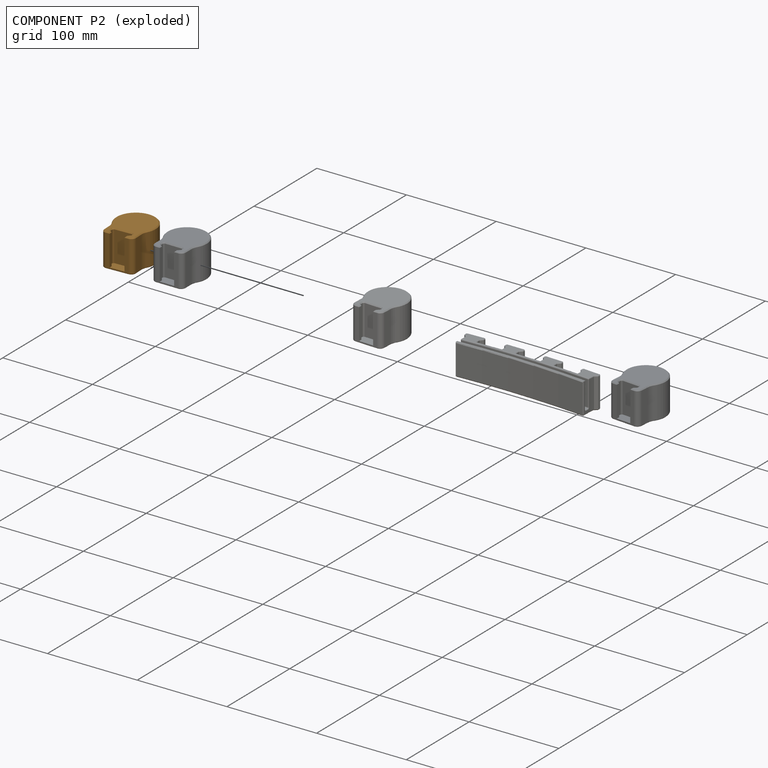
[diagram: component P2 — exploded]
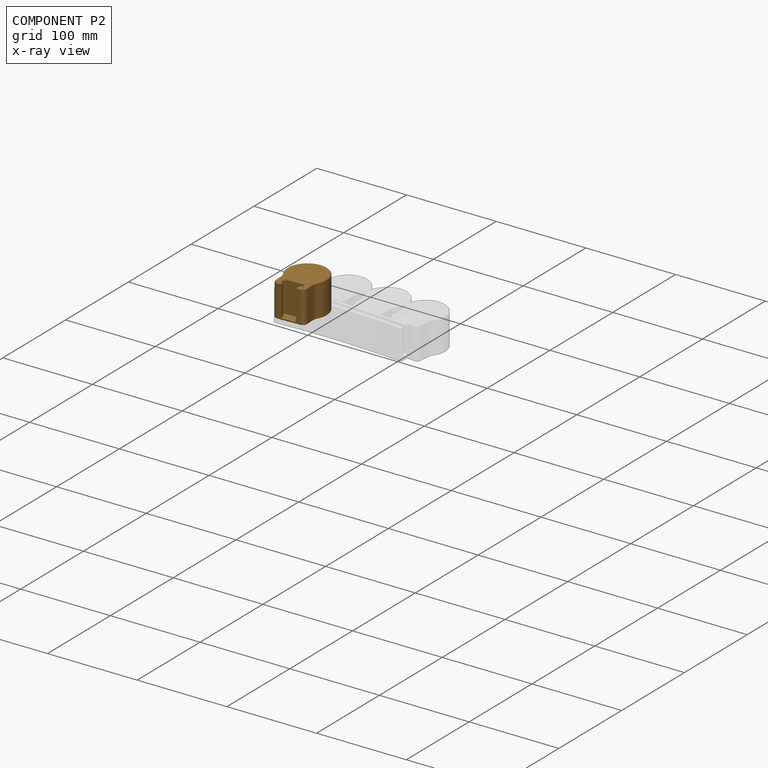
[diagram: component P2 — x-ray view]
COMPONENT P2 — geometry summary (no construction recipe available for this part):
  bounding box: 56.2 x 47.8 x 37.1 mm
  B-rep topology: 1 solid, 83 faces, 414 edges
  volume: 22186 mm^3 (22% of its bounding box)
  symmetry: mirror-symmetric across its x mid-plane
Held by: SLIDER mate "Slider 1" to P0.
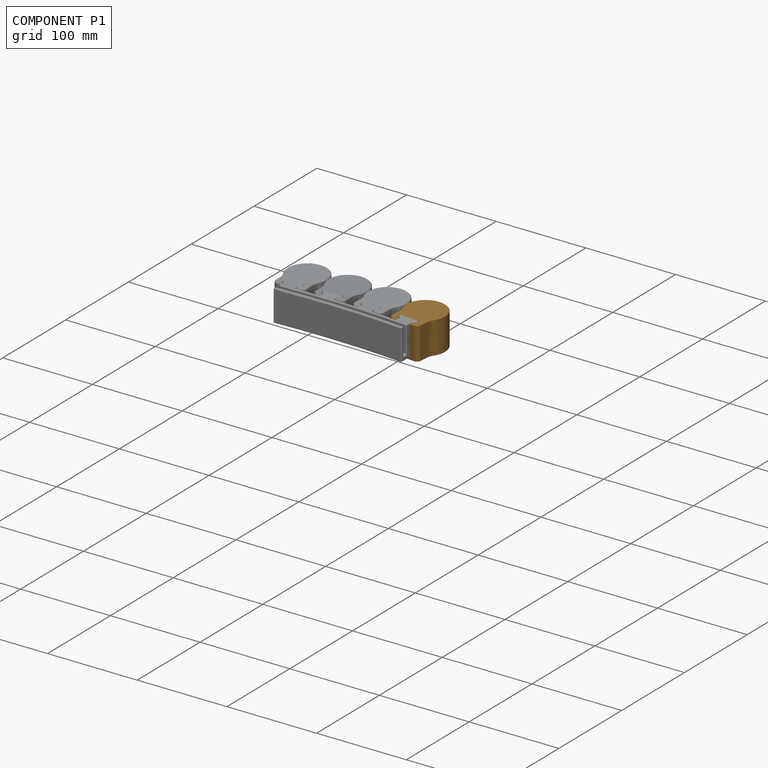
[diagram: component P1 — assembled]
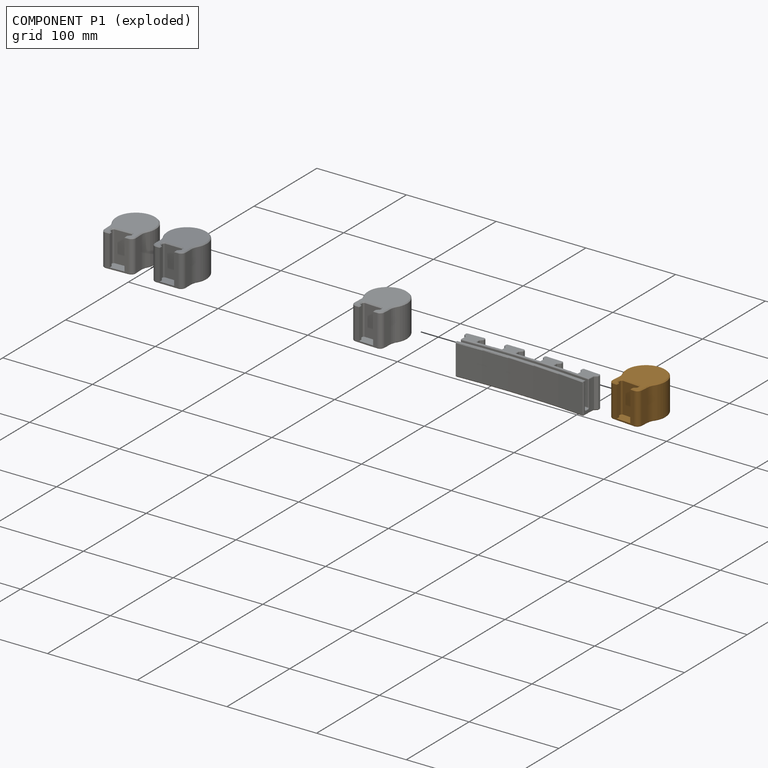
[diagram: component P1 — exploded]
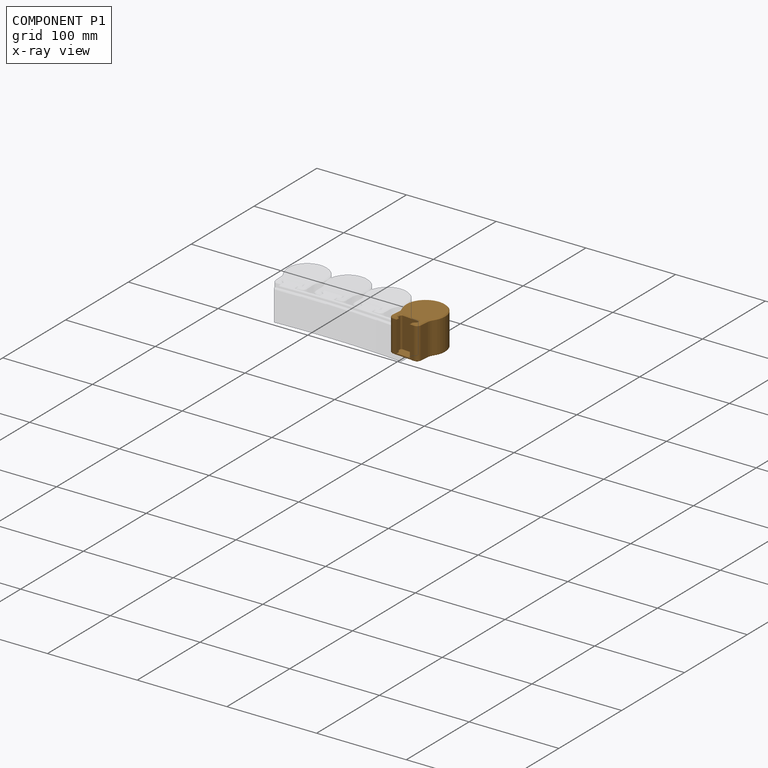
[diagram: component P1 — x-ray view]
COMPONENT P1 — geometry summary (no construction recipe available for this part):
  bounding box: 56.2 x 47.8 x 37.1 mm
  B-rep topology: 1 solid, 83 faces, 414 edges
  volume: 22186 mm^3 (22% of its bounding box)
  symmetry: mirror-symmetric across its x mid-plane
Held by: FASTENED mate "Fastened 1" to P0.
PROVENANCE & LICENSES
Assembly (occurrences, transforms, mates, per-part STEP geometry): AutoMate dataset, Zenodo record 7776208, CC0.
Construction recipes: CADFS (HuggingFace VladPyatov/CADFS, CC-BY-4.0, layered over the ABC dataset), FeatureScript reconstruction programs keyed by ABC model id.
Join: ABC meta listings map ABC model id -> Onshape documentId; within a shared document, parts are matched by geometric signature (bounding-box dims + volume at 0.1% relative tolerance, exact B-rep face/solid counts).
Verification: 1 of this assembly's 5 components carries a recipe attachment, and every attachment is mesh-verified: the CADFS STEP and the AutoMate member STEP were compared as meshes in their shared local frame (symmetric sampled-point-to-mesh distance); worst across the 1 attachment: below the mesh-comparison resolution (tessellation chordal tolerance ~0.237 mm) on a 158 mm part.
Renders: orthographic iso camera (az 35 / el 25); the floor grid conveys scale (grid pitch printed in each image; no ruler). In the exploded view each component is displaced by its stored offset vector: the offsets alone carry the explosion direction (mate normal/axis signs are not orientation cues and do not encode it), and separation distances are assigned per mate-chain, not proportionally to assembly-order depth.
